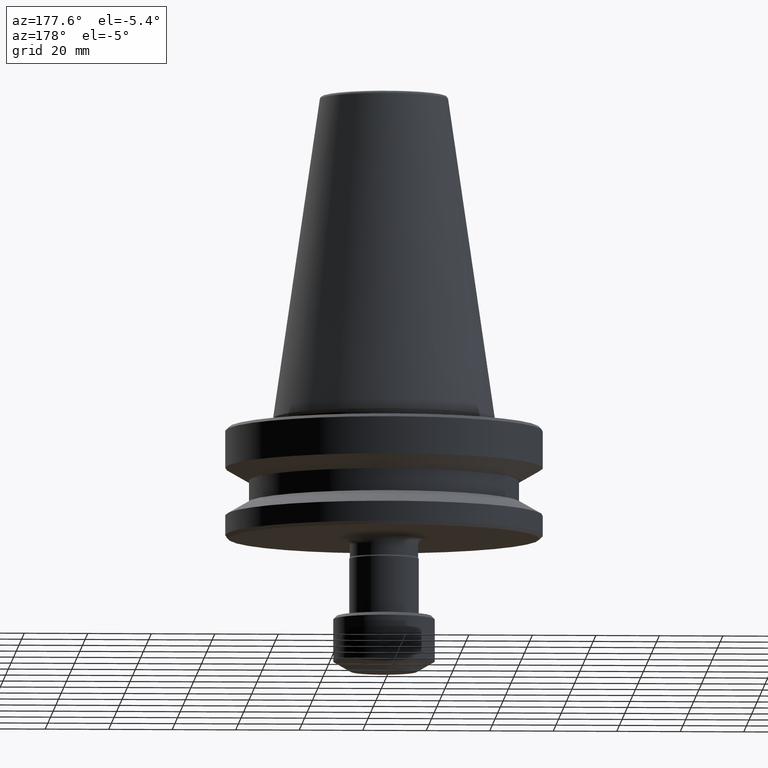
[diagram: clean part render]
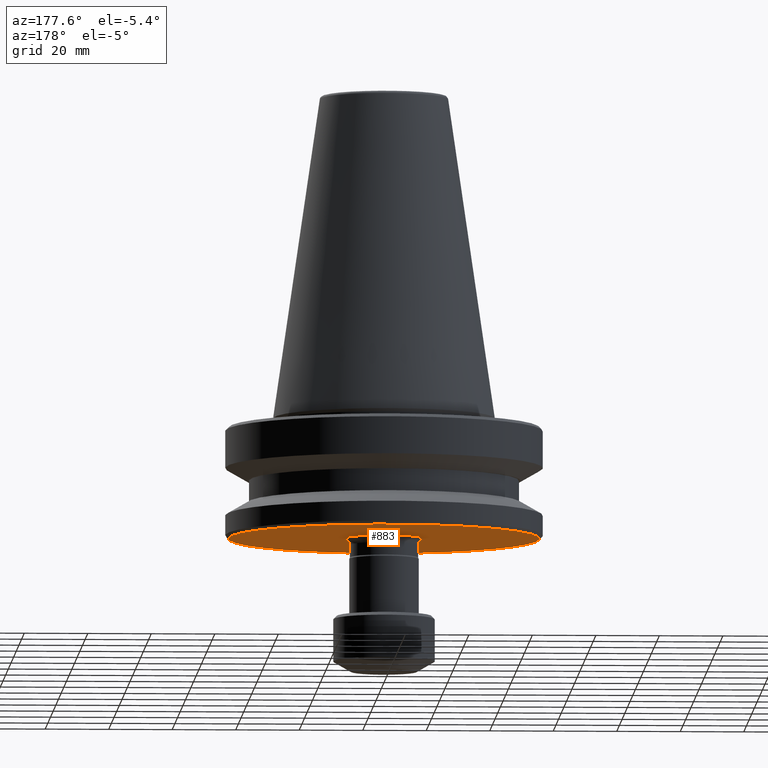
[diagram: same view with one face highlighted and labeled with its STEP entity id]
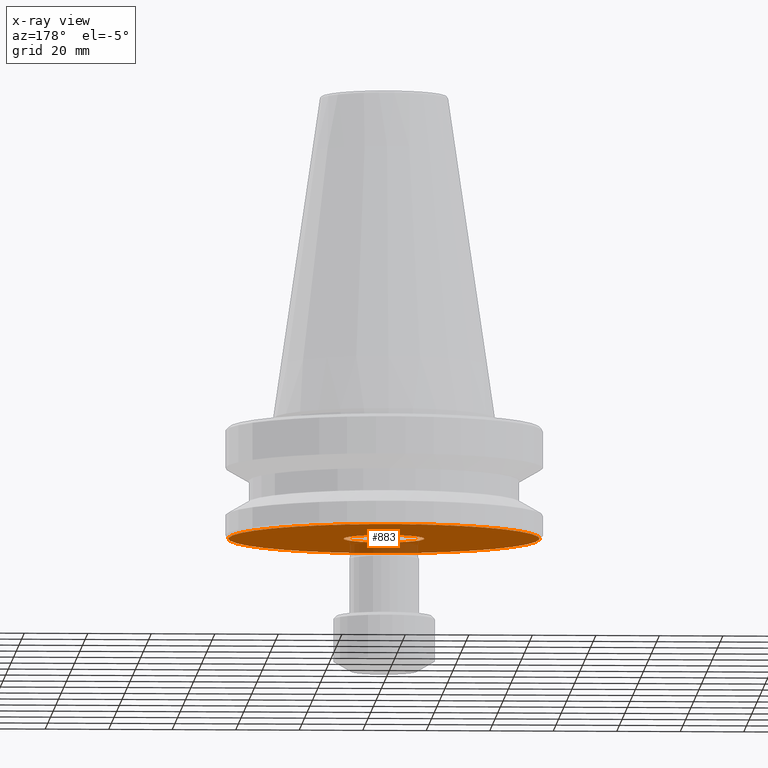
[diagram: x-ray of the same camera — body ghosted, the highlighted face saturated]
A machine part, auxiliary view. The second image highlights one B-rep face of the part: STEP entity #883.
The next image is the same camera in x-ray: the body ghosted, the highlighted face saturated — about 10% of this face is hidden behind the body in this view.
In plain terms, the highlighted planar face has unit normal (0, 0, -1).
Its self-contained STEP definition (entity closure, byte-faithful):
#2 = EDGE_LOOP ( 'NONE', ( #23, #888 ) ) ;
#15 = ORIENTED_EDGE ( 'NONE', *, *, #549, .F. ) ;
#23 = ORIENTED_EDGE ( 'NONE', *, *, #410, .T. ) ;
#44 = CARTESIAN_POINT ( 'NONE',  ( -12.74999999996828700, 1.561424668908991500E-015, -38.00000000002156500 ) ) ;
#95 = CARTESIAN_POINT ( 'NONE',  ( 0.0000000000000000000, 0.0000000000000000000, -38.00000000002158600 ) ) ;
#98 = CARTESIAN_POINT ( 'NONE',  ( 0.0000000000000000000, 0.0000000000000000000, -38.00000000002157200 ) ) ;
#99 = EDGE_LOOP ( 'NONE', ( #1037, #15 ) ) ;
#100 = VERTEX_POINT ( 'NONE', #232 ) ;
#116 = CIRCLE ( 'NONE', #397, 48.99999999996496300 ) ;
#119 = CIRCLE ( 'NONE', #575, 12.74999999996828700 ) ;
#232 = CARTESIAN_POINT ( 'NONE',  ( -48.99999999996496300, 6.062001655775107900E-015, -38.00000000002158600 ) ) ;
#303 = DIRECTION ( 'NONE',  ( 1.000000000000000000, 0.0000000000000000000, 0.0000000000000000000 ) ) ;
#333 = DIRECTION ( 'NONE',  ( 0.0000000000000000000, 0.0000000000000000000, -1.000000000000000000 ) ) ;
#351 = VERTEX_POINT ( 'NONE', #727 ) ;
#397 = AXIS2_PLACEMENT_3D ( 'NONE', #542, #754, #946 ) ;
#410 = EDGE_CURVE ( 'NONE', #351, #565, #1026, .T. ) ;
#413 = CARTESIAN_POINT ( 'NONE',  ( 48.99999999996496300, 0.0000000000000000000, -38.00000000002158600 ) ) ;
#476 = FACE_BOUND ( 'NONE', #2, .T. ) ;
#485 = AXIS2_PLACEMENT_3D ( 'NONE', #95, #1050, #657 ) ;
#542 = CARTESIAN_POINT ( 'NONE',  ( 0.0000000000000000000, 0.0000000000000000000, -38.00000000002158600 ) ) ;
#547 = DIRECTION ( 'NONE',  ( -1.000000000000000000, 0.0000000000000000000, -0.0000000000000000000 ) ) ;
#549 = EDGE_CURVE ( 'NONE', #100, #554, #1043, .T. ) ;
#554 = VERTEX_POINT ( 'NONE', #413 ) ;
#565 = VERTEX_POINT ( 'NONE', #44 ) ;
#575 = AXIS2_PLACEMENT_3D ( 'NONE', #1163, #1002, #303 ) ;
#599 = FACE_OUTER_BOUND ( 'NONE', #99, .T. ) ;
#614 = DIRECTION ( 'NONE',  ( 1.000000000000000000, 0.0000000000000000000, 0.0000000000000000000 ) ) ;
#657 = DIRECTION ( 'NONE',  ( 1.000000000000000000, 0.0000000000000000000, 0.0000000000000000000 ) ) ;
#667 = EDGE_CURVE ( 'NONE', #565, #351, #119, .T. ) ;
#709 = DIRECTION ( 'NONE',  ( -0.0000000000000000000, -0.0000000000000000000, 1.000000000000000000 ) ) ;
#727 = CARTESIAN_POINT ( 'NONE',  ( 12.74999999996828700, 0.0000000000000000000, -38.00000000002156500 ) ) ;
#749 = AXIS2_PLACEMENT_3D ( 'NONE', #1212, #709, #614 ) ;
#754 = DIRECTION ( 'NONE',  ( -0.0000000000000000000, -0.0000000000000000000, 1.000000000000000000 ) ) ;
#757 = AXIS2_PLACEMENT_3D ( 'NONE', #98, #333, #547 ) ;
#883 = ADVANCED_FACE ( 'NONE', ( #476, #599 ), #900, .T. ) ;
#888 = ORIENTED_EDGE ( 'NONE', *, *, #667, .T. ) ;
#900 = PLANE ( 'NONE',  #757 ) ;
#917 = EDGE_CURVE ( 'NONE', #554, #100, #116, .T. ) ;
#946 = DIRECTION ( 'NONE',  ( 1.000000000000000000, 0.0000000000000000000, 0.0000000000000000000 ) ) ;
#1002 = DIRECTION ( 'NONE',  ( -0.0000000000000000000, -0.0000000000000000000, 1.000000000000000000 ) ) ;
#1026 = CIRCLE ( 'NONE', #485, 12.74999999996828700 ) ;
#1037 = ORIENTED_EDGE ( 'NONE', *, *, #917, .F. ) ;
#1043 = CIRCLE ( 'NONE', #749, 48.99999999996496300 ) ;
#1050 = DIRECTION ( 'NONE',  ( -0.0000000000000000000, -0.0000000000000000000, 1.000000000000000000 ) ) ;
#1163 = CARTESIAN_POINT ( 'NONE',  ( 0.0000000000000000000, 0.0000000000000000000, -38.00000000002158600 ) ) ;
#1212 = CARTESIAN_POINT ( 'NONE',  ( 0.0000000000000000000, 0.0000000000000000000, -38.00000000002158600 ) ) ;